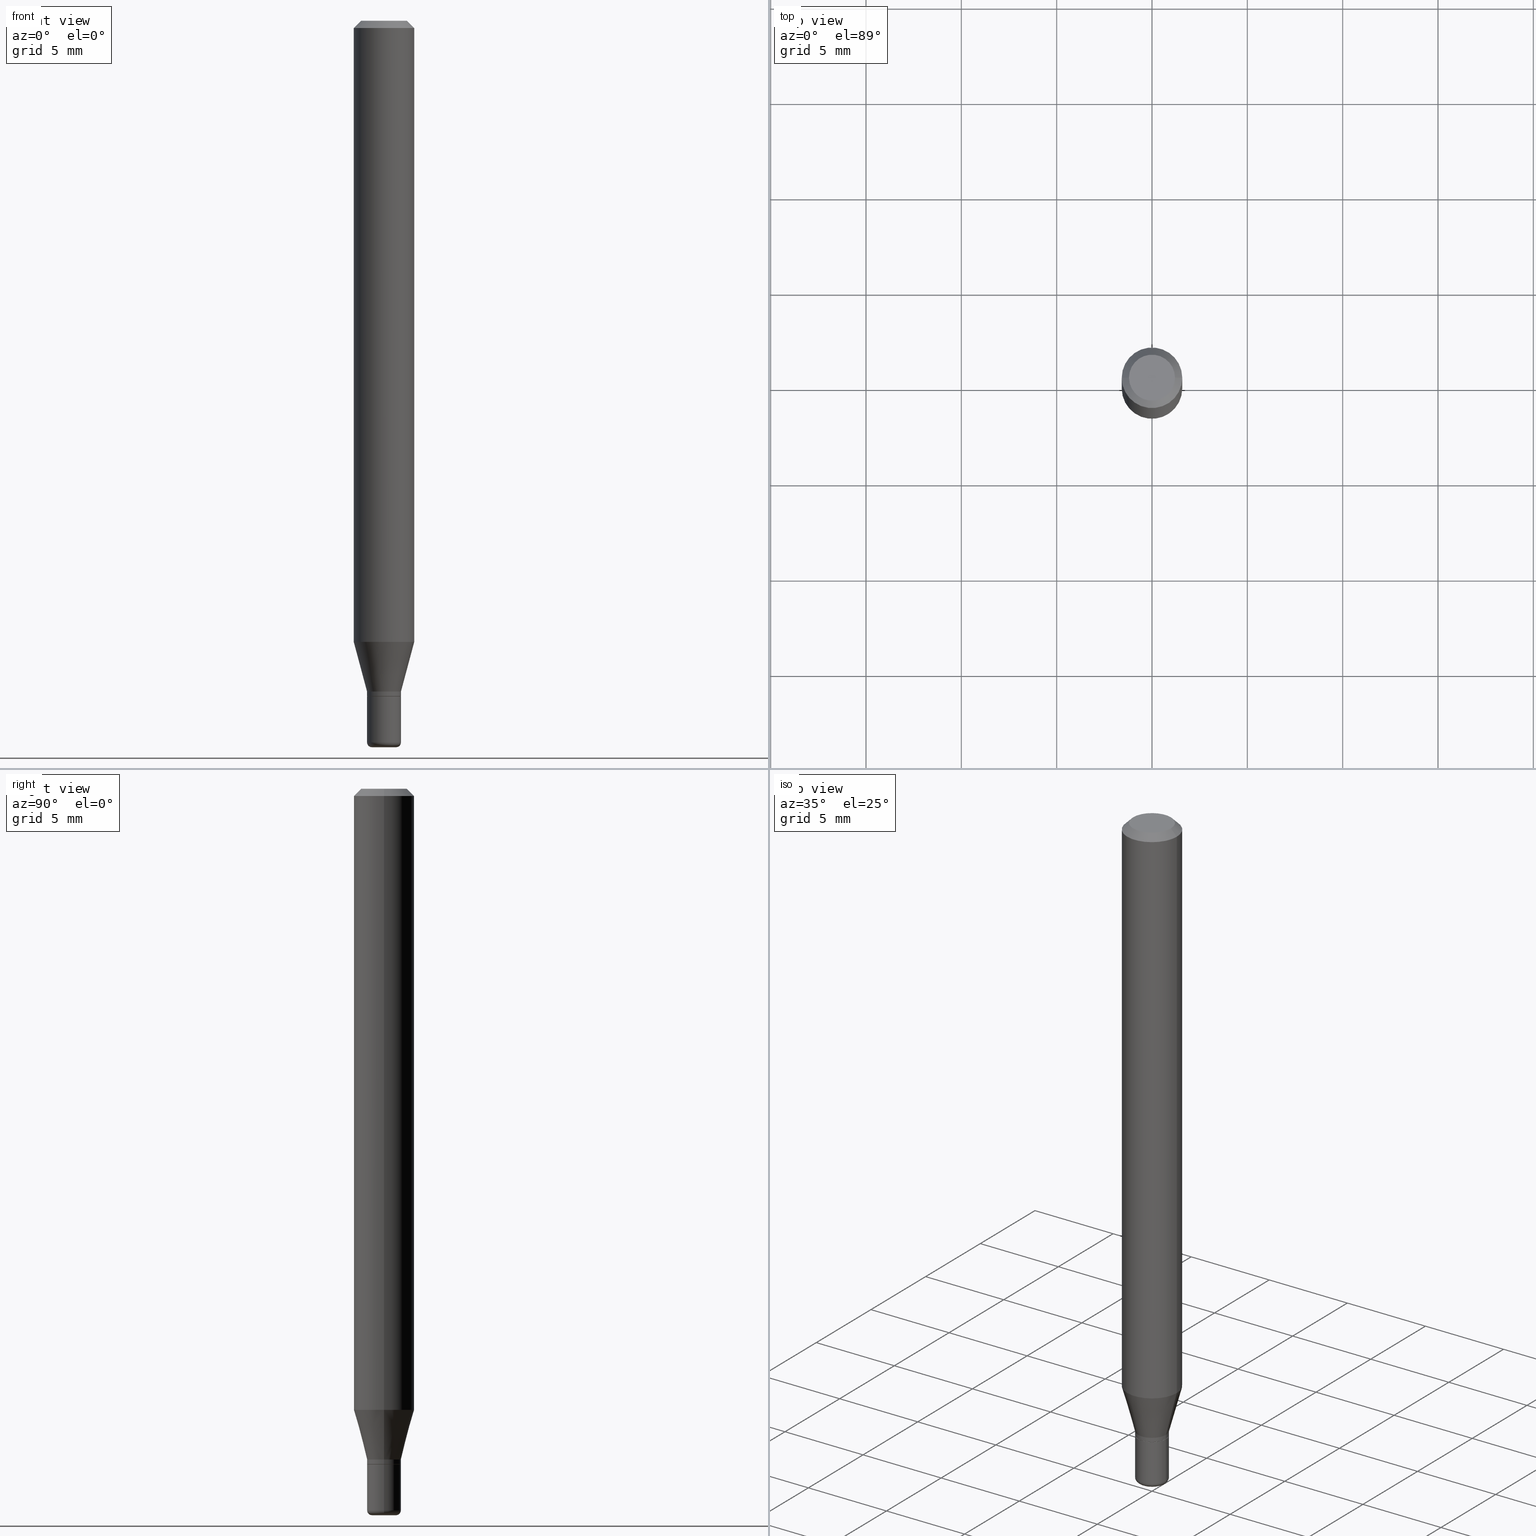
[diagram: canonical four-view strip — front | top / right | iso, engineering-drawing reading convention]
A machine part, canonical four-view strip (front | top / right | iso — engineering-drawing reading convention). The complete STEP part file that produces these views, byte-faithful:
ISO-10303-21;
HEADER;
FILE_DESCRIPTION (( 'STEP AP203' ),
    '1' );
FILE_NAME ('08688.STEP',
    '2024-02-29T20:23:07',
    ( '' ),
    ( '' ),
    'SwSTEP 2.0',
    'SolidWorks 2023',
    '' );
FILE_SCHEMA (( 'CONFIG_CONTROL_DESIGN' ));
ENDSEC;

DATA;
#1 = ADVANCED_FACE ( 'NONE', ( #189 ), #419, .T. ) ;
#2 = SECURITY_CLASSIFICATION_LEVEL ( 'unclassified' ) ;
#3 = ORIENTED_EDGE ( 'NONE', *, *, #167, .T. ) ;
#4 = CIRCLE ( 'NONE', #60, 0.06250000000000000000 ) ;
#5 = CIRCLE ( 'NONE', #93, 0.06250000000000000000 ) ;
#6 = DIRECTION ( 'NONE',  ( -2.438088387897960049E-29, 3.491481338843145188E-15, 1.000000000000000000 ) ) ;
#7 = CONICAL_SURFACE ( 'NONE', #121, 0.03499999999999998251, 0.2617993877991494633 ) ;
#8 = ORIENTED_EDGE ( 'NONE', *, *, #448, .F. ) ;
#9 = ORIENTED_EDGE ( 'NONE', *, *, #448, .T. ) ;
#10 = CIRCLE ( 'NONE', #110, 0.06250000000000000000 ) ;
#11 = VERTEX_POINT ( 'NONE', #409 ) ;
#12 = DESIGN_CONTEXT ( 'detailed design', #378, 'design' ) ;
#13 = CIRCLE ( 'NONE', #82, 0.03449999999999997513 ) ;
#14 = ORIENTED_EDGE ( 'NONE', *, *, #318, .F. ) ;
#15 = PRODUCT_DEFINITION_SHAPE ( 'NONE', 'NONE',  #283 ) ;
#16 = CC_DESIGN_DATE_AND_TIME_ASSIGNMENT ( #387, #355, ( #429 ) ) ;
#17 = EDGE_LOOP ( 'NONE', ( #490, #87, #372, #86 ) ) ;
#18 = ORIENTED_EDGE ( 'NONE', *, *, #318, .T. ) ;
#19 = CARTESIAN_POINT ( 'NONE',  ( 3.411428984628265351E-29, -4.870616467686188228E-15, -1.395000000000000018 ) ) ;
#20 = VERTEX_POINT ( 'NONE', #302 ) ;
#21 = ORIENTED_EDGE ( 'NONE', *, *, #141, .T. ) ;
#22 = DIRECTION ( 'NONE',  ( 1.000000000000000000, -6.982962677686259611E-15, 4.883557194083110659E-29 ) ) ;
#23 = DIRECTION ( 'NONE',  ( -2.445468806185136597E-29, 3.491481338843145583E-15, 1.000000000000000000 ) ) ;
#24 = CARTESIAN_POINT ( 'NONE',  ( -0.02500000000000000486, -5.006601780842473685E-15, -1.500000000000000222 ) ) ;
#25 = EDGE_CURVE ( 'NONE', #273, #390, #382, .T. ) ;
#26 = APPROVAL_ROLE ( '' ) ;
#27 = DIRECTION ( 'NONE',  ( 1.000000000000000000, -6.982962677686272233E-15, 0.000000000000000000 ) ) ;
#28 = CIRCLE ( 'NONE', #338, 0.03499999999999998251 ) ;
#29 = CARTESIAN_POINT ( 'NONE',  ( 3.411428984628265351E-29, -4.870616467686188228E-15, -1.395000000000000018 ) ) ;
#30 = EDGE_CURVE ( 'NONE', #20, #360, #54, .T. ) ;
#31 = DIRECTION ( 'NONE',  ( 2.438088387897960049E-29, -3.491481338843145188E-15, -1.000000000000000000 ) ) ;
#32 = DIRECTION ( 'NONE',  ( 0.2588190451025207395, 1.565188264969626109E-15, 0.9659258262890682012 ) ) ;
#33 = CARTESIAN_POINT ( 'NONE',  ( 3.668203209277704895E-29, -5.237222008264718177E-15, -1.500000000000000222 ) ) ;
#34 = CARTESIAN_POINT ( 'NONE',  ( -0.06250000000000000000, -4.033276836316059521E-15, -1.282368602791855938 ) ) ;
#35 = ORIENTED_EDGE ( 'NONE', *, *, #62, .T. ) ;
#36 = AXIS2_PLACEMENT_3D ( 'NONE', #29, #411, #450 ) ;
#37 = DIRECTION ( 'NONE',  ( 1.000000000000000000, 0.000000000000000000, 0.000000000000000000 ) ) ;
#38 = LINE ( 'NONE', #195, #120 ) ;
#39 = APPROVAL ( #200, 'UNSPECIFIED' ) ;
#40 = LOCAL_TIME ( 15, 23, 7.000000000000000000, #159 ) ;
#41 = CARTESIAN_POINT ( 'NONE',  ( 3.135992416158701602E-29, -4.477366046166122926E-15, -1.282368602791855938 ) ) ;
#42 = APPROVAL_ROLE ( '' ) ;
#43 = PERSON_AND_ORGANIZATION ( #89, #486 ) ;
#44 = APPROVAL_PERSON_ORGANIZATION ( #68, #46, #26 ) ;
#45 = FACE_OUTER_BOUND ( 'NONE', #97, .T. ) ;
#46 = APPROVAL ( #152, 'UNSPECIFIED' ) ;
#47 = AXIS2_PLACEMENT_3D ( 'NONE', #407, #220, #22 ) ;
#48 = DIRECTION ( 'NONE',  ( 1.000000000000000000, -6.982962677686280910E-15, 0.000000000000000000 ) ) ;
#49 = EDGE_CURVE ( 'NONE', #210, #250, #255, .T. ) ;
#50 = ORIENTED_EDGE ( 'NONE', *, *, #323, .T. ) ;
#51 = CARTESIAN_POINT ( 'NONE',  ( 3.411428984628265351E-29, -4.870616467686188228E-15, -1.395000000000000018 ) ) ;
#52 = CIRCLE ( 'NONE', #517, 0.03500000000000000333 ) ;
#53 = DIRECTION ( 'NONE',  ( -2.445468806185136597E-29, 3.491481338843145583E-15, 1.000000000000000000 ) ) ;
#54 = CIRCLE ( 'NONE', #479, 0.03500000000000000333 ) ;
#55 = LINE ( 'NONE', #227, #277 ) ;
#56 = EDGE_LOOP ( 'NONE', ( #474, #242, #400, #427 ) ) ;
#57 = CIRCLE ( 'NONE', #383, 0.03499999999999998251 ) ;
#58 = ORIENTED_EDGE ( 'NONE', *, *, #314, .F. ) ;
#59 = ORIENTED_EDGE ( 'NONE', *, *, #402, .T. ) ;
#60 = AXIS2_PLACEMENT_3D ( 'NONE', #251, #53, #405 ) ;
#61 = APPROVAL_PERSON_ORGANIZATION ( #237, #39, #42 ) ;
#62 = EDGE_CURVE ( 'NONE', #273, #335, #105, .T. ) ;
#63 = ORIENTED_EDGE ( 'NONE', *, *, #456, .F. ) ;
#64 = ORIENTED_EDGE ( 'NONE', *, *, #516, .F. ) ;
#65 = CALENDAR_DATE ( 2024, 29, 2 ) ;
#66 = CARTESIAN_POINT ( 'NONE',  ( -0.03449999999999997513, -4.625479223848953840E-15, -1.395000000000000018 ) ) ;
#67 = CARTESIAN_POINT ( 'NONE',  ( 3.410206250225173110E-29, -4.868870727016767513E-15, -1.394500000000000073 ) ) ;
#68 = PERSON_AND_ORGANIZATION ( #89, #486 ) ;
#69 = DIRECTION ( 'NONE',  ( 1.000000000000000000, -6.982962677686266711E-15, 0.000000000000000000 ) ) ;
#70 = DIRECTION ( 'NONE',  ( -2.445468806185136597E-29, 3.491481338843145583E-15, 1.000000000000000000 ) ) ;
#71 = EDGE_CURVE ( 'NONE', #91, #286, #260, .T. ) ;
#72 = CARTESIAN_POINT ( 'NONE',  ( 0.06250000000000000000, -4.364351673553916694E-16, 3.047610484872459871E-30 ) ) ;
#73 = AXIS2_PLACEMENT_3D ( 'NONE', #287, #249, #289 ) ;
#74 = CARTESIAN_POINT ( 'NONE',  ( 0.03499999999999998251, -5.080105348016776545E-15, -1.385000000000000009 ) ) ;
#75 = CARTESIAN_POINT ( 'NONE',  ( 0.03499999999999997558, -5.113274420735786690E-15, -1.394500000000000073 ) ) ;
#76 = ORIENTED_EDGE ( 'NONE', *, *, #167, .F. ) ;
#77 = EDGE_CURVE ( 'NONE', #250, #333, #284, .T. ) ;
#78 = CYLINDRICAL_SURFACE ( 'NONE', #297, 0.03499999999999998251 ) ;
#79 = VECTOR ( 'NONE', #32, 39.37007874015748854 ) ;
#80 = CARTESIAN_POINT ( 'NONE',  ( -0.03499999999999999639, -4.787771873765202881E-15, -1.395000000000000018 ) ) ;
#81 = CARTESIAN_POINT ( 'NONE',  ( 0.03449999999999997513, -5.111528680066364398E-15, -1.395000000000000018 ) ) ;
#82 = AXIS2_PLACEMENT_3D ( 'NONE', #174, #292, #257 ) ;
#83 = EDGE_CURVE ( 'NONE', #333, #360, #147, .T. ) ;
#84 = AXIS2_PLACEMENT_3D ( 'NONE', #418, #31, #146 ) ;
#85 = CARTESIAN_POINT ( 'NONE',  ( 0.06250000000000000000, -4.913801213521515384E-15, -1.282368602791855938 ) ) ;
#86 = ORIENTED_EDGE ( 'NONE', *, *, #71, .F. ) ;
#87 = ORIENTED_EDGE ( 'NONE', *, *, #178, .T. ) ;
#88 = CARTESIAN_POINT ( 'NONE',  ( -6.680649051745406845E-45, 9.538196290434862081E-31, 2.731847993664263218E-16 ) ) ;
#89 = PERSON ( 'UNSPECIFIED', 'UNSPECIFIED', 'UNSPECIFIED', ('UNSPECIFIED'), ('UNSPECIFIED'), ('UNSPECIFIED') ) ;
#90 = ORIENTED_EDGE ( 'NONE', *, *, #362, .F. ) ;
#91 = VERTEX_POINT ( 'NONE', #226 ) ;
#92 = FACE_OUTER_BOUND ( 'NONE', #165, .T. ) ;
#93 = AXIS2_PLACEMENT_3D ( 'NONE', #41, #341, #311 ) ;
#94 = DIRECTION ( 'NONE',  ( 1.000000000000000000, -6.982962677686266711E-15, 4.852736867747365086E-29 ) ) ;
#95 = ORIENTED_EDGE ( 'NONE', *, *, #62, .F. ) ;
#96 = FACE_OUTER_BOUND ( 'NONE', #480, .T. ) ;
#97 = EDGE_LOOP ( 'NONE', ( #432, #327, #359, #291 ) ) ;
#98 = CC_DESIGN_PERSON_AND_ORGANIZATION_ASSIGNMENT ( #43, #470, ( #429 ) ) ;
#99 =( LENGTH_UNIT ( ) NAMED_UNIT ( * ) SI_UNIT ( $, .METRE. ) );
#100 = VECTOR ( 'NONE', #414, 39.37007874015748854 ) ;
#101 = LINE ( 'NONE', #66, #151 ) ;
#102 = EDGE_LOOP ( 'NONE', ( #63, #326, #238, #288 ) ) ;
#103 = LINE ( 'NONE', #336, #258 ) ;
#104 = VERTEX_POINT ( 'NONE', #143 ) ;
#105 = CIRCLE ( 'NONE', #300, 0.03499999999999997558 ) ;
#106 = DIRECTION ( 'NONE',  ( 1.000000000000000000, -6.982962677686259611E-15, 0.000000000000000000 ) ) ;
#107 = CC_DESIGN_PERSON_AND_ORGANIZATION_ASSIGNMENT ( #224, #352, ( #214 ) ) ;
#108 = FACE_OUTER_BOUND ( 'NONE', #489, .T. ) ;
#109 = PERSON_AND_ORGANIZATION ( #89, #486 ) ;
#110 = AXIS2_PLACEMENT_3D ( 'NONE', #303, #507, #69 ) ;
#111 = DIRECTION ( 'NONE',  ( -2.445468806185136597E-29, 3.491481338843145583E-15, 1.000000000000000000 ) ) ;
#112 = DIRECTION ( 'NONE',  ( 1.000000000000000000, -6.982962677686276966E-15, 0.000000000000000000 ) ) ;
#113 = FACE_OUTER_BOUND ( 'NONE', #328, .T. ) ;
#114 = CONICAL_SURFACE ( 'NONE', #154, 0.03449999999999997513, 0.7853981633975507526 ) ;
#115 = LINE ( 'NONE', #264, #100 ) ;
#116 = CALENDAR_DATE ( 2024, 29, 2 ) ;
#117 = DIRECTION ( 'NONE',  ( 1.000000000000000000, -6.982962677686265922E-15, 4.876176775795935793E-29 ) ) ;
#118 = DIRECTION ( 'NONE',  ( -2.438088387897960049E-29, 3.491481338843145188E-15, 1.000000000000000000 ) ) ;
#119 = DIRECTION ( 'NONE',  ( 2.438088387897960049E-29, -3.491481338843145188E-15, -1.000000000000000000 ) ) ;
#120 = VECTOR ( 'NONE', #350, 39.37007874015748143 ) ;
#121 = AXIS2_PLACEMENT_3D ( 'NONE', #248, #483, #370 ) ;
#122 = CALENDAR_DATE ( 2024, 29, 2 ) ;
#123 = DIRECTION ( 'NONE',  ( 1.000000000000000000, -6.982962677686262766E-15, 0.000000000000000000 ) ) ;
#124 = CALENDAR_DATE ( 2024, 29, 2 ) ;
#125 = APPROVAL ( #186, 'UNSPECIFIED' ) ;
#126 = EDGE_LOOP ( 'NONE', ( #18, #247, #90, #8 ) ) ;
#127 = MANIFOLD_SOLID_BREP ( 'Body-Move/Copy2[1]', #171 ) ;
#128 = VERTEX_POINT ( 'NONE', #223 ) ;
#129 = DIRECTION ( 'NONE',  ( -2.445468806185136597E-29, 3.491481338843145583E-15, 1.000000000000000000 ) ) ;
#130 = CYLINDRICAL_SURFACE ( 'NONE', #246, 0.03499999999999998251 ) ;
#131 = ORIENTED_EDGE ( 'NONE', *, *, #236, .F. ) ;
#132 = ADVANCED_FACE ( 'NONE', ( #108 ), #234, .T. ) ;
#133 = VERTEX_POINT ( 'NONE', #503 ) ;
#134 = DIRECTION ( 'NONE',  ( -2.445468806185136597E-29, 3.491481338843145583E-15, 1.000000000000000000 ) ) ;
#135 = ORIENTED_EDGE ( 'NONE', *, *, #415, .T. ) ;
#136 = ORIENTED_EDGE ( 'NONE', *, *, #83, .T. ) ;
#137 = DIRECTION ( 'NONE',  ( 1.000000000000000000, -6.982962677686265922E-15, 4.876176775795935793E-29 ) ) ;
#138 = DIRECTION ( 'NONE',  ( 1.000000000000000000, -6.982962677686268288E-15, 0.000000000000000000 ) ) ;
#139 = CARTESIAN_POINT ( 'NONE',  ( -0.03499999999999998251, 2.486899575160349408E-16, -1.721627281589216057E-30 ) ) ;
#140 =( CONVERSION_BASED_UNIT ( 'INCH', #232 ) LENGTH_UNIT ( ) NAMED_UNIT ( #245 ) );
#141 = EDGE_CURVE ( 'NONE', #390, #91, #57, .T. ) ;
#142 = PLANE ( 'NONE',  #376 ) ;
#143 = CARTESIAN_POINT ( 'NONE',  ( 0.06250000000000000000, -4.888073874380378612E-16, -0.01499999999999970281 ) ) ;
#144 = DIRECTION ( 'NONE',  ( -2.445468806185136597E-29, 3.491481338843145583E-15, 1.000000000000000000 ) ) ;
#145 = CALENDAR_DATE ( 2024, 29, 2 ) ;
#146 = DIRECTION ( 'NONE',  ( -1.000000000000000000, 6.982962677686265922E-15, -4.876176775795935793E-29 ) ) ;
#147 = LINE ( 'NONE', #379, #262 ) ;
#148 = MECHANICAL_CONTEXT ( 'NONE', #274, 'mechanical' ) ;
#149 = FACE_OUTER_BOUND ( 'NONE', #282, .T. ) ;
#150 = CARTESIAN_POINT ( 'NONE',  ( 3.386974296566414366E-29, -4.835701654297756579E-15, -1.385000000000000009 ) ) ;
#151 = VECTOR ( 'NONE', #439, 39.37007874015748143 ) ;
#152 = APPROVAL_STATUS ( 'not_yet_approved' ) ;
#153 = DIRECTION ( 'NONE',  ( 1.000000000000000000, -6.982962677686254089E-15, 0.000000000000000000 ) ) ;
#154 = AXIS2_PLACEMENT_3D ( 'NONE', #158, #343, #494 ) ;
#155 = DIRECTION ( 'NONE',  ( 1.000000000000000000, -6.982962677686266711E-15, 4.876176775795935793E-29 ) ) ;
#156 = AXIS2_PLACEMENT_3D ( 'NONE', #231, #70, #155 ) ;
#157 = PERSON_AND_ORGANIZATION ( #89, #486 ) ;
#158 = CARTESIAN_POINT ( 'NONE',  ( 3.411428984628265351E-29, -4.870616467686188228E-15, -1.395000000000000018 ) ) ;
#159 = COORDINATED_UNIVERSAL_TIME_OFFSET ( 5, 0, .BEHIND. ) ;
#160 = FACE_OUTER_BOUND ( 'NONE', #397, .T. ) ;
#161 = COORDINATED_UNIVERSAL_TIME_OFFSET ( 5, 0, .BEHIND. ) ;
#162 = DIRECTION ( 'NONE',  ( -1.000000000000000000, 6.982962677686266711E-15, 0.000000000000000000 ) ) ;
#163 = AXIS2_PLACEMENT_3D ( 'NONE', #190, #505, #514 ) ;
#164 = DIRECTION ( 'NONE',  ( -2.445468806185136597E-29, 3.491481338843145583E-15, 1.000000000000000000 ) ) ;
#165 = EDGE_LOOP ( 'NONE', ( #207, #329, #482, #218 ) ) ;
#166 = VERTEX_POINT ( 'NONE', #499 ) ;
#167 = EDGE_CURVE ( 'NONE', #166, #20, #457, .T. ) ;
#168 = ORIENTED_EDGE ( 'NONE', *, *, #323, .F. ) ;
#169 = CIRCLE ( 'NONE', #440, 0.03499999999999994782 ) ;
#170 = CARTESIAN_POINT ( 'NONE',  ( -6.680649051745406845E-45, 9.538196290434862081E-31, 2.731847993664263218E-16 ) ) ;
#171 = CLOSED_SHELL ( 'NONE', ( #518, #1, #386, #502, #320, #278 ) ) ;
#172 = TOROIDAL_SURFACE ( 'NONE', #47, 0.02500000000000000139, 0.009999999999999948166 ) ;
#173 = EDGE_LOOP ( 'NONE', ( #403, #334, #58, #268 ) ) ;
#174 = CARTESIAN_POINT ( 'NONE',  ( 3.411428984628265351E-29, -4.870616467686188228E-15, -1.395000000000000018 ) ) ;
#175 = ORIENTED_EDGE ( 'NONE', *, *, #325, .T. ) ;
#176 = CIRCLE ( 'NONE', #361, 0.04750000000000000749 ) ;
#177 = DIRECTION ( 'NONE',  ( -2.445468806185136597E-29, 3.491481338843145583E-15, 1.000000000000000000 ) ) ;
#178 = EDGE_CURVE ( 'NONE', #390, #437, #115, .T. ) ;
#179 = VECTOR ( 'NONE', #385, 39.37007874015748143 ) ;
#180 = DATE_AND_TIME ( #145, #240 ) ;
#181 = DIRECTION ( 'NONE',  ( -1.000000000000000000, 7.105427357600962416E-15, 0.000000000000000000 ) ) ;
#182 = COORDINATED_UNIVERSAL_TIME_OFFSET ( 5, 0, .BEHIND. ) ;
#183 = LINE ( 'NONE', #72, #179 ) ;
#184 = CIRCLE ( 'NONE', #417, 0.03449999999999997513 ) ;
#185 = DIRECTION ( 'NONE',  ( 1.000000000000000000, -6.982962677686254089E-15, 0.000000000000000000 ) ) ;
#186 = APPROVAL_STATUS ( 'not_yet_approved' ) ;
#187 = ADVANCED_FACE ( 'NONE', ( #310 ), #458, .T. ) ;
#188 = CARTESIAN_POINT ( 'NONE',  ( 0.000000000000000000, 0.000000000000000000, 0.000000000000000000 ) ) ;
#189 = FACE_OUTER_BOUND ( 'NONE', #371, .T. ) ;
#190 = CARTESIAN_POINT ( 'NONE',  ( 3.668203209277632395E-31, -5.237222008264614861E-17, -0.01499999999999970281 ) ) ;
#191 = APPLICATION_PROTOCOL_DEFINITION ( 'international standard', 'config_control_design', 1994, #378 ) ;
#192 = DIRECTION ( 'NONE',  ( 1.000000000000000000, -6.982962677686266711E-15, 4.876176775795935793E-29 ) ) ;
#193 = CC_DESIGN_PERSON_AND_ORGANIZATION_ASSIGNMENT ( #219, #412, ( #214 ) ) ;
#194 = ORIENTED_EDGE ( 'NONE', *, *, #236, .T. ) ;
#195 = CARTESIAN_POINT ( 'NONE',  ( 0.06250000000000000000, -4.811533449433669144E-16, -0.01499999999999970281 ) ) ;
#196 = CC_DESIGN_APPROVAL ( #125, ( #214 ) ) ;
#197 = CARTESIAN_POINT ( 'NONE',  ( -0.03499999999999998251, -4.310144266548890801E-15, -1.385000000000000009 ) ) ;
#198 = CC_DESIGN_PERSON_AND_ORGANIZATION_ASSIGNMENT ( #157, #306, ( #283 ) ) ;
#199 = AXIS2_PLACEMENT_3D ( 'NONE', #446, #496, #123 ) ;
#200 = APPROVAL_STATUS ( 'not_yet_approved' ) ;
#201 = AXIS2_PLACEMENT_3D ( 'NONE', #423, #452, #106 ) ;
#202 = DIRECTION ( 'NONE',  ( 1.000000000000000000, -6.982962677686265922E-15, 4.876176775795935793E-29 ) ) ;
#203 = DATE_AND_TIME ( #122, #40 ) ;
#204 = CARTESIAN_POINT ( 'NONE',  ( 3.582686580359766038E-29, -5.359686688179453325E-15, -1.500000000000000222 ) ) ;
#205 = AXIS2_PLACEMENT_3D ( 'NONE', #275, #119, #239 ) ;
#206 = EDGE_LOOP ( 'NONE', ( #294, #131 ) ) ;
#207 = ORIENTED_EDGE ( 'NONE', *, *, #49, .T. ) ;
#208 = ORIENTED_EDGE ( 'NONE', *, *, #362, .T. ) ;
#209 = CIRCLE ( 'NONE', #389, 0.02500000000000000486 ) ;
#210 = VERTEX_POINT ( 'NONE', #468 ) ;
#211 = DIRECTION ( 'NONE',  ( 1.000000000000000000, -6.982962677686253300E-15, 0.000000000000000000 ) ) ;
#212 = EDGE_LOOP ( 'NONE', ( #443, #21, #442, #253 ) ) ;
#213 = LOCAL_TIME ( 15, 23, 7.000000000000000000, #161 ) ;
#214 = PRODUCT_DEFINITION_FORMATION_WITH_SPECIFIED_SOURCE ( 'ANY', '', #348, .NOT_KNOWN. ) ;
#215 = FACE_OUTER_BOUND ( 'NONE', #17, .T. ) ;
#216 = EDGE_CURVE ( 'NONE', #128, #433, #55, .T. ) ;
#217 = EDGE_CURVE ( 'NONE', #437, #433, #380, .T. ) ;
#218 = ORIENTED_EDGE ( 'NONE', *, *, #415, .F. ) ;
#219 = PERSON_AND_ORGANIZATION ( #89, #486 ) ;
#220 = DIRECTION ( 'NONE',  ( -2.445468806185136597E-29, 3.491481338843145583E-15, 1.000000000000000000 ) ) ;
#221 = CARTESIAN_POINT ( 'NONE',  ( -0.02500000000000000139, -5.024671510936262901E-15, -1.490000000000000213 ) ) ;
#222 = DIRECTION ( 'NONE',  ( 1.000000000000000000, -6.982962677686266711E-15, 4.876176775795935793E-29 ) ) ;
#223 = CARTESIAN_POINT ( 'NONE',  ( -0.04750000000000000749, 3.578768372314221353E-16, 2.731847993664239060E-16 ) ) ;
#224 = PERSON_AND_ORGANIZATION ( #89, #486 ) ;
#225 = DIRECTION ( 'NONE',  ( -2.445468806185136597E-29, 3.491481338843145583E-15, 1.000000000000000000 ) ) ;
#226 = CARTESIAN_POINT ( 'NONE',  ( 0.03499999999999998251, -5.080105348016776545E-15, -1.385000000000000009 ) ) ;
#227 = CARTESIAN_POINT ( 'NONE',  ( -0.06250000000000000000, 3.840629472727455270E-16, -0.01499999999999970281 ) ) ;
#228 = DIRECTION ( 'NONE',  ( 0.000000000000000000, 0.000000000000000000, 1.000000000000000000 ) ) ;
#229 = CC_DESIGN_PERSON_AND_ORGANIZATION_ASSIGNMENT ( #466, #345, ( #348 ) ) ;
#230 = DIRECTION ( 'NONE',  ( -2.445468806185136597E-29, 3.491481338843145583E-15, 1.000000000000000000 ) ) ;
#231 = CARTESIAN_POINT ( 'NONE',  ( 0.000000000000000000, 0.000000000000000000, 0.000000000000000000 ) ) ;
#232 = LENGTH_MEASURE_WITH_UNIT ( LENGTH_MEASURE( 0.02539999999999999897 ), #99 );
#233 = CARTESIAN_POINT ( 'NONE',  ( 0.03449999999999997513, -5.111528680066364398E-15, -1.395000000000000018 ) ) ;
#234 = CONICAL_SURFACE ( 'NONE', #36, 0.03449999999999997513, 0.7853981633975507526 ) ;
#235 = DIRECTION ( 'NONE',  ( -2.445468806185136597E-29, 3.491481338843145583E-15, 1.000000000000000000 ) ) ;
#236 = EDGE_CURVE ( 'NONE', #250, #210, #209, .T. ) ;
#237 = PERSON_AND_ORGANIZATION ( #89, #486 ) ;
#238 = ORIENTED_EDGE ( 'NONE', *, *, #216, .T. ) ;
#239 = DIRECTION ( 'NONE',  ( -1.000000000000000000, 6.982962677686265922E-15, -4.876176775795935793E-29 ) ) ;
#240 = LOCAL_TIME ( 15, 23, 7.000000000000000000, #454 ) ;
#241 = EDGE_CURVE ( 'NONE', #11, #487, #13, .T. ) ;
#242 = ORIENTED_EDGE ( 'NONE', *, *, #265, .T. ) ;
#243 = ORIENTED_EDGE ( 'NONE', *, *, #141, .F. ) ;
#244 = ORIENTED_EDGE ( 'NONE', *, *, #402, .F. ) ;
#245 = DIMENSIONAL_EXPONENTS ( 1.000000000000000000, 0.000000000000000000, 0.000000000000000000, 0.000000000000000000, 0.000000000000000000, 0.000000000000000000, 0.000000000000000000 ) ;
#246 = AXIS2_PLACEMENT_3D ( 'NONE', #447, #134, #137 ) ;
#247 = ORIENTED_EDGE ( 'NONE', *, *, #313, .T. ) ;
#248 = CARTESIAN_POINT ( 'NONE',  ( 3.386974296566414366E-29, -4.835701654297756579E-15, -1.385000000000000009 ) ) ;
#249 = DIRECTION ( 'NONE',  ( -2.445468806185136597E-29, 3.491481338843145583E-15, 1.000000000000000000 ) ) ;
#250 = VERTEX_POINT ( 'NONE', #24 ) ;
#251 = CARTESIAN_POINT ( 'NONE',  ( 3.668203209277632395E-31, -5.237222008264614861E-17, -0.01499999999999970281 ) ) ;
#252 = CARTESIAN_POINT ( 'NONE',  ( -0.06250000000000000000, 4.440892098500626162E-16, -3.074334431409316114E-30 ) ) ;
#253 = ORIENTED_EDGE ( 'NONE', *, *, #265, .F. ) ;
#254 = CC_DESIGN_APPROVAL ( #46, ( #283 ) ) ;
#255 = CIRCLE ( 'NONE', #324, 0.02500000000000000486 ) ;
#256 = CARTESIAN_POINT ( 'NONE',  ( 3.668203209277704895E-29, -5.237222008264718177E-15, -1.500000000000000222 ) ) ;
#257 = DIRECTION ( 'NONE',  ( 1.000000000000000000, -6.982962677686268288E-15, 0.000000000000000000 ) ) ;
#258 = VECTOR ( 'NONE', #435, 39.37007874015748143 ) ;
#259 = CARTESIAN_POINT ( 'NONE',  ( -0.03499999999999994782, -4.787771873765202881E-15, -1.490000000000000213 ) ) ;
#260 = LINE ( 'NONE', #74, #79 ) ;
#261 = COORDINATED_UNIVERSAL_TIME_OFFSET ( 5, 0, .BEHIND. ) ;
#262 = VECTOR ( 'NONE', #305, 39.37007874015748143 ) ;
#263 = DIRECTION ( 'NONE',  ( -2.445468806185136597E-29, 3.491481338843145583E-15, 1.000000000000000000 ) ) ;
#264 = CARTESIAN_POINT ( 'NONE',  ( -0.03499999999999998251, -4.587011696781721293E-15, -1.385000000000000009 ) ) ;
#265 = EDGE_CURVE ( 'NONE', #437, #286, #307, .T. ) ;
#266 = CARTESIAN_POINT ( 'NONE',  ( 0.000000000000000000, 0.000000000000000000, 0.000000000000000000 ) ) ;
#267 =( GEOMETRIC_REPRESENTATION_CONTEXT ( 3 ) GLOBAL_UNCERTAINTY_ASSIGNED_CONTEXT ( ( #280 ) ) GLOBAL_UNIT_ASSIGNED_CONTEXT ( ( #140, #497, #420 ) ) REPRESENTATION_CONTEXT ( 'NONE', 'WORKASPACE' ) );
#268 = ORIENTED_EDGE ( 'NONE', *, *, #366, .F. ) ;
#269 = CARTESIAN_POINT ( 'NONE',  ( 3.411428984628265351E-29, -4.870616467686188228E-15, -1.395000000000000018 ) ) ;
#270 = APPROVAL_ROLE ( '' ) ;
#271 = LINE ( 'NONE', #233, #509 ) ;
#272 = CARTESIAN_POINT ( 'NONE',  ( 3.668203209277632395E-31, -5.237222008264614861E-17, -0.01499999999999970281 ) ) ;
#273 = VERTEX_POINT ( 'NONE', #276 ) ;
#274 = APPLICATION_CONTEXT ( 'configuration controlled 3d designs of mechanical parts and assemblies' ) ;
#275 = CARTESIAN_POINT ( 'NONE',  ( 3.316907271900976589E-16, 0.04750000000000000749, -2.925296391183627249E-17 ) ) ;
#276 = CARTESIAN_POINT ( 'NONE',  ( -0.03499999999999997558, -4.620180769500732227E-15, -1.394500000000000073 ) ) ;
#277 = VECTOR ( 'NONE', #493, 39.37007874015748143 ) ;
#278 = ADVANCED_FACE ( 'NONE', ( #353 ), #319, .F. ) ;
#279 = CC_DESIGN_APPROVAL ( #39, ( #429 ) ) ;
#280 = UNCERTAINTY_MEASURE_WITH_UNIT (LENGTH_MEASURE( 1.000000000000000082E-05 ), #140, 'distance_accuracy_value', 'NONE');
#281 = EDGE_LOOP ( 'NONE', ( #14, #495 ) ) ;
#282 = EDGE_LOOP ( 'NONE', ( #399, #356 ) ) ;
#283 = PRODUCT_DEFINITION ( 'UNKNOWN', '', #214, #12 ) ;
#284 = CIRCLE ( 'NONE', #422, 0.009999999999999948166 ) ;
#285 = AXIS2_PLACEMENT_3D ( 'NONE', #308, #455, #27 ) ;
#286 = VERTEX_POINT ( 'NONE', #85 ) ;
#287 = CARTESIAN_POINT ( 'NONE',  ( 3.643748521215853910E-29, -5.202307194876288105E-15, -1.490000000000000213 ) ) ;
#288 = ORIENTED_EDGE ( 'NONE', *, *, #332, .T. ) ;
#289 = DIRECTION ( 'NONE',  ( 1.000000000000000000, -6.982962677686259611E-15, 4.883557194083110659E-29 ) ) ;
#290 = AXIS2_PLACEMENT_3D ( 'NONE', #413, #235, #153 ) ;
#291 = ORIENTED_EDGE ( 'NONE', *, *, #216, .F. ) ;
#292 = DIRECTION ( 'NONE',  ( -2.445468806185136597E-29, 3.491481338843145583E-15, 1.000000000000000000 ) ) ;
#293 = VECTOR ( 'NONE', #404, 39.37007874015748143 ) ;
#294 = ORIENTED_EDGE ( 'NONE', *, *, #49, .F. ) ;
#295 = FACE_OUTER_BOUND ( 'NONE', #488, .T. ) ;
#296 = DIRECTION ( 'NONE',  ( 7.105427357601001859E-15, 1.000000000000000000, -3.491481338843145583E-15 ) ) ;
#297 = AXIS2_PLACEMENT_3D ( 'NONE', #266, #230, #117 ) ;
#298 = DATE_AND_TIME ( #65, #368 ) ;
#299 = CARTESIAN_POINT ( 'NONE',  ( 0.000000000000000000, 0.000000000000000000, 0.000000000000000000 ) ) ;
#300 = AXIS2_PLACEMENT_3D ( 'NONE', #67, #23, #185 ) ;
#301 = ADVANCED_BREP_SHAPE_REPRESENTATION ( '08688', ( #127, #461, #354 ), #267 ) ;
#302 = CARTESIAN_POINT ( 'NONE',  ( 0.03500000000000000333, -5.115020161405208194E-15, -1.395000000000000018 ) ) ;
#303 = CARTESIAN_POINT ( 'NONE',  ( 3.668203209277632395E-31, -5.237222008264614861E-17, -0.01499999999999970281 ) ) ;
#304 = EDGE_CURVE ( 'NONE', #128, #133, #504, .T. ) ;
#305 = DIRECTION ( 'NONE',  ( -2.445468806185136877E-29, 3.491481338843145188E-15, 1.000000000000000000 ) ) ;
#306 = PERSON_AND_ORGANIZATION_ROLE ( 'creator' ) ;
#307 = CIRCLE ( 'NONE', #199, 0.06250000000000000000 ) ;
#308 = CARTESIAN_POINT ( 'NONE',  ( 0.02500000000000000139, -5.376881261818443984E-15, -1.490000000000000213 ) ) ;
#309 = CARTESIAN_POINT ( 'NONE',  ( 0.03499999999999997558, -2.444036937190191771E-16, 1.706661871528576406E-30 ) ) ;
#310 = FACE_OUTER_BOUND ( 'NONE', #102, .T. ) ;
#311 = DIRECTION ( 'NONE',  ( 1.000000000000000000, -6.982962677686262766E-15, 0.000000000000000000 ) ) ;
#312 = APPROVAL_PERSON_ORGANIZATION ( #109, #125, #270 ) ;
#313 = EDGE_CURVE ( 'NONE', #11, #273, #101, .T. ) ;
#314 = EDGE_CURVE ( 'NONE', #104, #433, #4, .T. ) ;
#315 = CARTESIAN_POINT ( 'NONE',  ( 0.000000000000000000, 0.000000000000000000, 0.000000000000000000 ) ) ;
#316 = ADVANCED_FACE ( 'NONE', ( #215 ), #7, .T. ) ;
#317 = CARTESIAN_POINT ( 'NONE',  ( 3.643748521215853910E-29, -5.202307194876288105E-15, -1.490000000000000213 ) ) ;
#318 = EDGE_CURVE ( 'NONE', #487, #11, #184, .T. ) ;
#319 = PLANE ( 'NONE',  #491 ) ;
#320 = ADVANCED_FACE ( 'NONE', ( #295 ), #172, .T. ) ;
#321 = CARTESIAN_POINT ( 'NONE',  ( 3.386974296566414366E-29, -4.835701654297756579E-15, -1.385000000000000009 ) ) ;
#322 = VECTOR ( 'NONE', #462, 39.37007874015748143 ) ;
#323 = EDGE_CURVE ( 'NONE', #335, #91, #103, .T. ) ;
#324 = AXIS2_PLACEMENT_3D ( 'NONE', #256, #453, #508 ) ;
#325 = EDGE_CURVE ( 'NONE', #133, #128, #176, .T. ) ;
#326 = ORIENTED_EDGE ( 'NONE', *, *, #304, .F. ) ;
#327 = ORIENTED_EDGE ( 'NONE', *, *, #456, .T. ) ;
#328 = EDGE_LOOP ( 'NONE', ( #369, #35, #50, #243 ) ) ;
#329 = ORIENTED_EDGE ( 'NONE', *, *, #77, .T. ) ;
#330 = LOCAL_TIME ( 15, 23, 7.000000000000000000, #182 ) ;
#331 = DIRECTION ( 'NONE',  ( 1.000000000000000000, -6.982962677686266711E-15, 4.876176775795935793E-29 ) ) ;
#332 = EDGE_CURVE ( 'NONE', #433, #104, #10, .T. ) ;
#333 = VERTEX_POINT ( 'NONE', #259 ) ;
#334 = ORIENTED_EDGE ( 'NONE', *, *, #217, .T. ) ;
#335 = VERTEX_POINT ( 'NONE', #75 ) ;
#336 = CARTESIAN_POINT ( 'NONE',  ( 0.03499999999999998251, -2.444036937190191771E-16, 1.706661871528576757E-30 ) ) ;
#337 = DIRECTION ( 'NONE',  ( -2.445468806185136597E-29, 3.491481338843145583E-15, 1.000000000000000000 ) ) ;
#338 = AXIS2_PLACEMENT_3D ( 'NONE', #321, #475, #392 ) ;
#339 = APPROVAL_DATE_TIME ( #506, #46 ) ;
#340 = CC_DESIGN_DATE_AND_TIME_ASSIGNMENT ( #180, #459, ( #283 ) ) ;
#341 = DIRECTION ( 'NONE',  ( -2.445468806185136597E-29, 3.491481338843145583E-15, 1.000000000000000000 ) ) ;
#342 = DIRECTION ( 'NONE',  ( -2.445468806185136597E-29, 3.491481338843145583E-15, 1.000000000000000000 ) ) ;
#343 = DIRECTION ( 'NONE',  ( -2.445468806185136597E-29, 3.491481338843145583E-15, 1.000000000000000000 ) ) ;
#344 = CARTESIAN_POINT ( 'NONE',  ( 3.411428984628265351E-29, -4.870616467686188228E-15, -1.395000000000000018 ) ) ;
#345 = PERSON_AND_ORGANIZATION_ROLE ( 'design_owner' ) ;
#346 = FACE_OUTER_BOUND ( 'NONE', #281, .T. ) ;
#347 = ORIENTED_EDGE ( 'NONE', *, *, #83, .F. ) ;
#348 = PRODUCT ( '08688', '08688', '', ( #148 ) ) ;
#349 = CC_DESIGN_SECURITY_CLASSIFICATION ( #429, ( #214 ) ) ;
#350 = DIRECTION ( 'NONE',  ( 0.7071067811865479058, -7.319954787623257623E-15, -0.7071067811865471286 ) ) ;
#351 = VECTOR ( 'NONE', #492, 39.37007874015748143 ) ;
#352 = PERSON_AND_ORGANIZATION_ROLE ( 'design_supplier' ) ;
#353 = FACE_OUTER_BOUND ( 'NONE', #206, .T. ) ;
#354 = AXIS2_PLACEMENT_3D ( 'NONE', #315, #228, #37 ) ;
#355 = DATE_TIME_ROLE ( 'classification_date' ) ;
#356 = ORIENTED_EDGE ( 'NONE', *, *, #516, .T. ) ;
#357 = DIRECTION ( 'NONE',  ( -2.445468806185136597E-29, 3.491481338843145583E-15, 1.000000000000000000 ) ) ;
#358 = AXIS2_PLACEMENT_3D ( 'NONE', #395, #164, #48 ) ;
#359 = ORIENTED_EDGE ( 'NONE', *, *, #314, .T. ) ;
#360 = VERTEX_POINT ( 'NONE', #80 ) ;
#361 = AXIS2_PLACEMENT_3D ( 'NONE', #88, #225, #381 ) ;
#362 = EDGE_CURVE ( 'NONE', #335, #273, #501, .T. ) ;
#363 = CARTESIAN_POINT ( 'NONE',  ( 0.000000000000000000, 0.000000000000000000, 0.000000000000000000 ) ) ;
#364 = AXIS2_PLACEMENT_3D ( 'NONE', #170, #485, #94 ) ;
#365 = ORIENTED_EDGE ( 'NONE', *, *, #484, .F. ) ;
#366 = EDGE_CURVE ( 'NONE', #286, #104, #183, .T. ) ;
#367 = ORIENTED_EDGE ( 'NONE', *, *, #77, .F. ) ;
#368 = LOCAL_TIME ( 15, 23, 7.000000000000000000, #261 ) ;
#369 = ORIENTED_EDGE ( 'NONE', *, *, #25, .F. ) ;
#370 = DIRECTION ( 'NONE',  ( 1.000000000000000000, -6.982962677686280910E-15, 0.000000000000000000 ) ) ;
#371 = EDGE_LOOP ( 'NONE', ( #396, #136, #394, #76 ) ) ;
#372 = ORIENTED_EDGE ( 'NONE', *, *, #388, .F. ) ;
#373 = ADVANCED_FACE ( 'NONE', ( #374 ), #500, .T. ) ;
#374 = FACE_OUTER_BOUND ( 'NONE', #173, .T. ) ;
#375 = DIRECTION ( 'NONE',  ( 1.000000000000000000, -6.982962677686280910E-15, 0.000000000000000000 ) ) ;
#376 = AXIS2_PLACEMENT_3D ( 'NONE', #269, #118, #421 ) ;
#377 = PLANE ( 'NONE',  #84 ) ;
#378 = APPLICATION_CONTEXT ( 'configuration controlled 3d designs of mechanical parts and assemblies' ) ;
#379 = CARTESIAN_POINT ( 'NONE',  ( -0.03499999999999997558, 2.486899575160348915E-16, -1.721627281589215706E-30 ) ) ;
#380 = LINE ( 'NONE', #252, #293 ) ;
#381 = DIRECTION ( 'NONE',  ( 1.000000000000000000, -6.982962677686266711E-15, 4.852736867747365086E-29 ) ) ;
#382 = LINE ( 'NONE', #139, #351 ) ;
#383 = AXIS2_PLACEMENT_3D ( 'NONE', #150, #342, #375 ) ;
#384 = DIRECTION ( 'NONE',  ( 0.7071067811866199593, -2.468850131083015945E-15, 0.7071067811864750752 ) ) ;
#385 = DIRECTION ( 'NONE',  ( -2.445468806185136877E-29, 3.491481338843145188E-15, 1.000000000000000000 ) ) ;
#386 = ADVANCED_FACE ( 'NONE', ( #149 ), #377, .F. ) ;
#387 = DATE_AND_TIME ( #124, #213 ) ;
#388 = EDGE_CURVE ( 'NONE', #286, #437, #5, .T. ) ;
#389 = AXIS2_PLACEMENT_3D ( 'NONE', #33, #144, #211 ) ;
#390 = VERTEX_POINT ( 'NONE', #197 ) ;
#391 = CIRCLE ( 'NONE', #285, 0.009999999999999948166 ) ;
#392 = DIRECTION ( 'NONE',  ( 1.000000000000000000, -6.982962677686280910E-15, 0.000000000000000000 ) ) ;
#393 = ADVANCED_FACE ( 'NONE', ( #465 ), #114, .T. ) ;
#394 = ORIENTED_EDGE ( 'NONE', *, *, #30, .F. ) ;
#395 = CARTESIAN_POINT ( 'NONE',  ( 3.386974296566414366E-29, -4.835701654297756579E-15, -1.385000000000000009 ) ) ;
#396 = ORIENTED_EDGE ( 'NONE', *, *, #463, .T. ) ;
#397 = EDGE_LOOP ( 'NONE', ( #401, #175 ) ) ;
#398 = TOROIDAL_SURFACE ( 'NONE', #73, 0.02500000000000000139, 0.009999999999999948166 ) ;
#399 = ORIENTED_EDGE ( 'NONE', *, *, #30, .T. ) ;
#400 = ORIENTED_EDGE ( 'NONE', *, *, #366, .T. ) ;
#401 = ORIENTED_EDGE ( 'NONE', *, *, #304, .T. ) ;
#402 = EDGE_CURVE ( 'NONE', #333, #166, #169, .T. ) ;
#403 = ORIENTED_EDGE ( 'NONE', *, *, #388, .T. ) ;
#404 = DIRECTION ( 'NONE',  ( -2.445468806185136877E-29, 3.491481338843145188E-15, 1.000000000000000000 ) ) ;
#405 = DIRECTION ( 'NONE',  ( 1.000000000000000000, -6.982962677686266711E-15, 0.000000000000000000 ) ) ;
#406 = AXIS2_PLACEMENT_3D ( 'NONE', #363, #357, #331 ) ;
#407 = CARTESIAN_POINT ( 'NONE',  ( 3.643748521215853910E-29, -5.202307194876288105E-15, -1.490000000000000213 ) ) ;
#408 = ADVANCED_FACE ( 'NONE', ( #511 ), #410, .T. ) ;
#409 = CARTESIAN_POINT ( 'NONE',  ( -0.03449999999999997513, -4.622829996674842639E-15, -1.395000000000000018 ) ) ;
#410 = CYLINDRICAL_SURFACE ( 'NONE', #430, 0.06250000000000000000 ) ;
#411 = DIRECTION ( 'NONE',  ( -2.445468806185136597E-29, 3.491481338843145583E-15, 1.000000000000000000 ) ) ;
#412 = PERSON_AND_ORGANIZATION_ROLE ( 'creator' ) ;
#413 = CARTESIAN_POINT ( 'NONE',  ( 3.410206250225173110E-29, -4.868870727016767513E-15, -1.394500000000000073 ) ) ;
#414 = DIRECTION ( 'NONE',  ( -0.2588190451025207395, 5.211531920934546309E-15, 0.9659258262890682012 ) ) ;
#415 = EDGE_CURVE ( 'NONE', #210, #166, #391, .T. ) ;
#416 = AXIS2_PLACEMENT_3D ( 'NONE', #188, #263, #192 ) ;
#417 = AXIS2_PLACEMENT_3D ( 'NONE', #19, #177, #138 ) ;
#418 = CARTESIAN_POINT ( 'NONE',  ( 2.444036937190534432E-16, 0.03499999999999513223, -1.395000000000000018 ) ) ;
#419 = CYLINDRICAL_SURFACE ( 'NONE', #156, 0.03499999999999997558 ) ;
#420 =( NAMED_UNIT ( * ) SI_UNIT ( $, .STERADIAN. ) SOLID_ANGLE_UNIT ( ) );
#421 = DIRECTION ( 'NONE',  ( 1.000000000000000000, -6.982962677686265922E-15, 4.876176775795935793E-29 ) ) ;
#422 = AXIS2_PLACEMENT_3D ( 'NONE', #221, #296, #181 ) ;
#423 = CARTESIAN_POINT ( 'NONE',  ( 3.643748521215853910E-29, -5.202307194876288105E-15, -1.490000000000000213 ) ) ;
#424 = DIRECTION ( 'NONE',  ( 2.445468806185136597E-29, -3.491481338843145583E-15, -1.000000000000000000 ) ) ;
#425 = ORIENTED_EDGE ( 'NONE', *, *, #313, .F. ) ;
#426 = PLANE ( 'NONE',  #205 ) ;
#427 = ORIENTED_EDGE ( 'NONE', *, *, #332, .F. ) ;
#428 = PRODUCT_RELATED_PRODUCT_CATEGORY ( 'detail', '', ( #348 ) ) ;
#429 = SECURITY_CLASSIFICATION ( '', '', #2 ) ;
#430 = AXIS2_PLACEMENT_3D ( 'NONE', #299, #467, #222 ) ;
#431 = FACE_OUTER_BOUND ( 'NONE', #212, .T. ) ;
#432 = ORIENTED_EDGE ( 'NONE', *, *, #325, .F. ) ;
#433 = VERTEX_POINT ( 'NONE', #460 ) ;
#434 = DIRECTION ( 'NONE',  ( 1.000000000000000000, -6.982962677686276966E-15, 0.000000000000000000 ) ) ;
#435 = DIRECTION ( 'NONE',  ( -2.445468806185136877E-29, 3.491481338843145188E-15, 1.000000000000000000 ) ) ;
#436 = ADVANCED_FACE ( 'NONE', ( #113 ), #78, .T. ) ;
#437 = VERTEX_POINT ( 'NONE', #34 ) ;
#438 = CYLINDRICAL_SURFACE ( 'NONE', #406, 0.03499999999999997558 ) ;
#439 = DIRECTION ( 'NONE',  ( -0.7071067811866199593, 7.493145998870616062E-15, 0.7071067811864750752 ) ) ;
#440 = AXIS2_PLACEMENT_3D ( 'NONE', #317, #111, #498 ) ;
#441 = ADVANCED_FACE ( 'NONE', ( #346 ), #142, .F. ) ;
#442 = ORIENTED_EDGE ( 'NONE', *, *, #71, .T. ) ;
#443 = ORIENTED_EDGE ( 'NONE', *, *, #178, .F. ) ;
#444 = ORIENTED_EDGE ( 'NONE', *, *, #241, .T. ) ;
#445 = EDGE_LOOP ( 'NONE', ( #347, #59, #3, #64 ) ) ;
#446 = CARTESIAN_POINT ( 'NONE',  ( 3.135992416158701602E-29, -4.477366046166122926E-15, -1.282368602791855938 ) ) ;
#447 = CARTESIAN_POINT ( 'NONE',  ( 0.000000000000000000, 0.000000000000000000, 0.000000000000000000 ) ) ;
#448 = EDGE_CURVE ( 'NONE', #487, #335, #271, .T. ) ;
#449 = CONICAL_SURFACE ( 'NONE', #358, 0.03499999999999998251, 0.2617993877991494633 ) ;
#450 = DIRECTION ( 'NONE',  ( 1.000000000000000000, -6.982962677686268288E-15, 0.000000000000000000 ) ) ;
#451 = APPROVAL_DATE_TIME ( #298, #125 ) ;
#452 = DIRECTION ( 'NONE',  ( -2.445468806185136597E-29, 3.491481338843145583E-15, 1.000000000000000000 ) ) ;
#453 = DIRECTION ( 'NONE',  ( -2.445468806185136597E-29, 3.491481338843145583E-15, 1.000000000000000000 ) ) ;
#454 = COORDINATED_UNIVERSAL_TIME_OFFSET ( 5, 0, .BEHIND. ) ;
#455 = DIRECTION ( 'NONE',  ( -6.982962677686266711E-15, -1.000000000000000000, 3.491481338843145583E-15 ) ) ;
#456 = EDGE_CURVE ( 'NONE', #133, #104, #38, .T. ) ;
#457 = LINE ( 'NONE', #309, #322 ) ;
#458 = CONICAL_SURFACE ( 'NONE', #163, 0.06250000000000000000, 0.7853981633974488341 ) ;
#459 = DATE_TIME_ROLE ( 'creation_date' ) ;
#460 = CARTESIAN_POINT ( 'NONE',  ( -0.06250000000000000000, -1.820779923274321795E-15, -0.01499999999999970281 ) ) ;
#461 = MANIFOLD_SOLID_BREP ( 'Body-Move/Copy2[2]', #512 ) ;
#462 = DIRECTION ( 'NONE',  ( -2.445468806185136877E-29, 3.491481338843145188E-15, 1.000000000000000000 ) ) ;
#463 = EDGE_CURVE ( 'NONE', #166, #333, #478, .T. ) ;
#464 = CONICAL_SURFACE ( 'NONE', #471, 0.06250000000000000000, 0.7853981633974488341 ) ;
#465 = FACE_OUTER_BOUND ( 'NONE', #126, .T. ) ;
#466 = PERSON_AND_ORGANIZATION ( #89, #486 ) ;
#467 = DIRECTION ( 'NONE',  ( -2.445468806185136597E-29, 3.491481338843145583E-15, 1.000000000000000000 ) ) ;
#468 = CARTESIAN_POINT ( 'NONE',  ( 0.02500000000000000486, -5.411796075206874844E-15, -1.500000000000000222 ) ) ;
#469 = ADVANCED_FACE ( 'NONE', ( #431 ), #449, .T. ) ;
#470 = PERSON_AND_ORGANIZATION_ROLE ( 'classification_officer' ) ;
#471 = AXIS2_PLACEMENT_3D ( 'NONE', #272, #424, #162 ) ;
#472 = ORIENTED_EDGE ( 'NONE', *, *, #25, .T. ) ;
#473 = ADVANCED_FACE ( 'NONE', ( #160 ), #426, .F. ) ;
#474 = ORIENTED_EDGE ( 'NONE', *, *, #217, .F. ) ;
#475 = DIRECTION ( 'NONE',  ( -2.445468806185136597E-29, 3.491481338843145583E-15, 1.000000000000000000 ) ) ;
#476 = APPROVAL_DATE_TIME ( #203, #39 ) ;
#477 = ADVANCED_FACE ( 'NONE', ( #45 ), #464, .T. ) ;
#478 = CIRCLE ( 'NONE', #201, 0.03499999999999994782 ) ;
#479 = AXIS2_PLACEMENT_3D ( 'NONE', #344, #337, #112 ) ;
#480 = EDGE_LOOP ( 'NONE', ( #208, #472, #365, #168 ) ) ;
#481 = FACE_OUTER_BOUND ( 'NONE', #445, .T. ) ;
#482 = ORIENTED_EDGE ( 'NONE', *, *, #463, .F. ) ;
#483 = DIRECTION ( 'NONE',  ( -2.445468806185136597E-29, 3.491481338843145583E-15, 1.000000000000000000 ) ) ;
#484 = EDGE_CURVE ( 'NONE', #91, #390, #28, .T. ) ;
#485 = DIRECTION ( 'NONE',  ( -2.445468806185136597E-29, 3.491481338843145583E-15, 1.000000000000000000 ) ) ;
#486 = ORGANIZATION ( 'UNSPECIFIED', 'UNSPECIFIED', '' ) ;
#487 = VERTEX_POINT ( 'NONE', #81 ) ;
#488 = EDGE_LOOP ( 'NONE', ( #367, #194, #135, #244 ) ) ;
#489 = EDGE_LOOP ( 'NONE', ( #425, #444, #9, #95 ) ) ;
#490 = ORIENTED_EDGE ( 'NONE', *, *, #484, .T. ) ;
#491 = AXIS2_PLACEMENT_3D ( 'NONE', #204, #6, #202 ) ;
#492 = DIRECTION ( 'NONE',  ( -2.445468806185136877E-29, 3.491481338843145188E-15, 1.000000000000000000 ) ) ;
#493 = DIRECTION ( 'NONE',  ( -0.7071067811865479058, 2.468850131082261005E-15, -0.7071067811865471286 ) ) ;
#494 = DIRECTION ( 'NONE',  ( 1.000000000000000000, -6.982962677686268288E-15, 0.000000000000000000 ) ) ;
#495 = ORIENTED_EDGE ( 'NONE', *, *, #241, .F. ) ;
#496 = DIRECTION ( 'NONE',  ( -2.445468806185136597E-29, 3.491481338843145583E-15, 1.000000000000000000 ) ) ;
#497 =( NAMED_UNIT ( * ) PLANE_ANGLE_UNIT ( ) SI_UNIT ( $, .RADIAN. ) );
#498 = DIRECTION ( 'NONE',  ( 1.000000000000000000, -6.982962677686259611E-15, 0.000000000000000000 ) ) ;
#499 = CARTESIAN_POINT ( 'NONE',  ( 0.03499999999999994782, -5.446710888595306494E-15, -1.490000000000000213 ) ) ;
#500 = CYLINDRICAL_SURFACE ( 'NONE', #416, 0.06250000000000000000 ) ;
#501 = CIRCLE ( 'NONE', #290, 0.03499999999999997558 ) ;
#502 = ADVANCED_FACE ( 'NONE', ( #481 ), #438, .T. ) ;
#503 = CARTESIAN_POINT ( 'NONE',  ( 0.04750000000000000749, -4.035134999187568762E-16, 2.731847993664288856E-16 ) ) ;
#504 = CIRCLE ( 'NONE', #364, 0.04750000000000000749 ) ;
#505 = DIRECTION ( 'NONE',  ( 2.445468806185136597E-29, -3.491481338843145583E-15, -1.000000000000000000 ) ) ;
#506 = DATE_AND_TIME ( #116, #330 ) ;
#507 = DIRECTION ( 'NONE',  ( -2.445468806185136597E-29, 3.491481338843145583E-15, 1.000000000000000000 ) ) ;
#508 = DIRECTION ( 'NONE',  ( 1.000000000000000000, -6.982962677686253300E-15, 0.000000000000000000 ) ) ;
#509 = VECTOR ( 'NONE', #384, 39.37007874015748143 ) ;
#510 = APPLICATION_PROTOCOL_DEFINITION ( 'international standard', 'config_control_design', 1994, #274 ) ;
#511 = FACE_OUTER_BOUND ( 'NONE', #56, .T. ) ;
#512 = CLOSED_SHELL ( 'NONE', ( #513, #393, #477, #373, #316, #469, #408, #187, #473, #441, #132, #436 ) ) ;
#513 = ADVANCED_FACE ( 'NONE', ( #96 ), #130, .T. ) ;
#514 = DIRECTION ( 'NONE',  ( -1.000000000000000000, 6.982962677686266711E-15, 0.000000000000000000 ) ) ;
#515 = SHAPE_DEFINITION_REPRESENTATION ( #15, #301 ) ;
#516 = EDGE_CURVE ( 'NONE', #360, #20, #52, .T. ) ;
#517 = AXIS2_PLACEMENT_3D ( 'NONE', #51, #129, #434 ) ;
#518 = ADVANCED_FACE ( 'NONE', ( #92 ), #398, .T. ) ;
ENDSEC;
END-ISO-10303-21;
